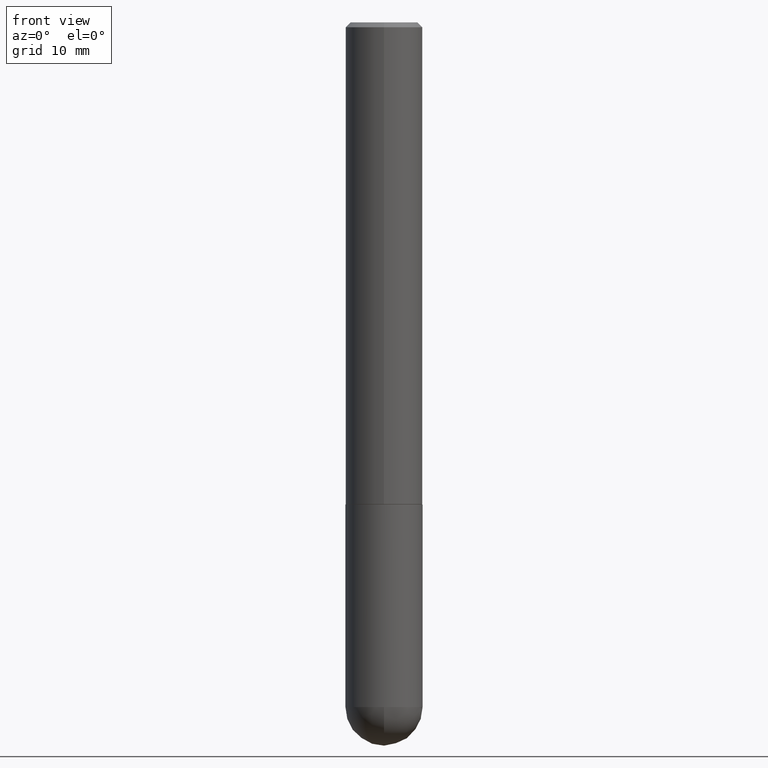
[diagram: clean part render]
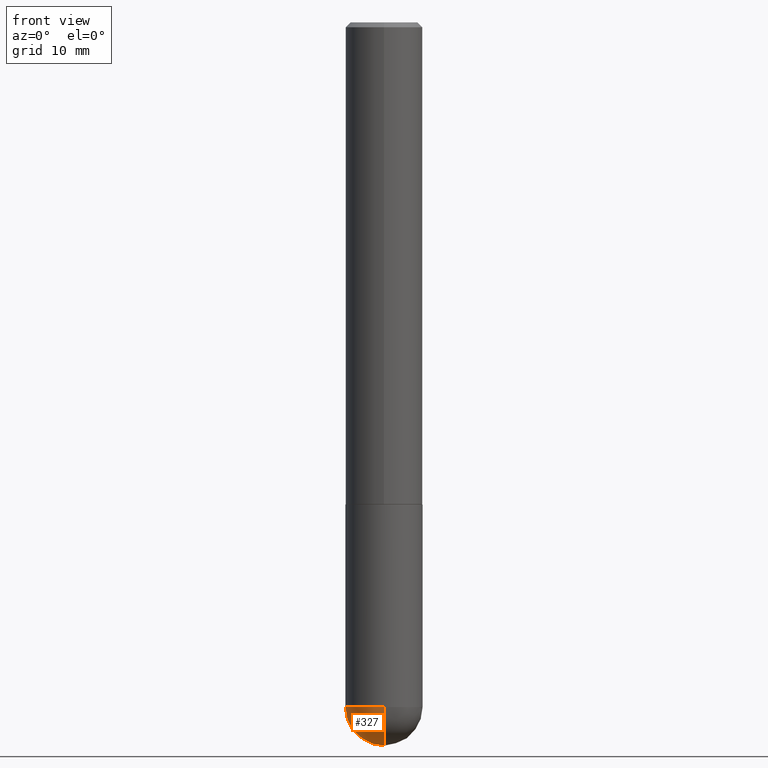
[diagram: same view with one face highlighted and labeled with its STEP entity id]
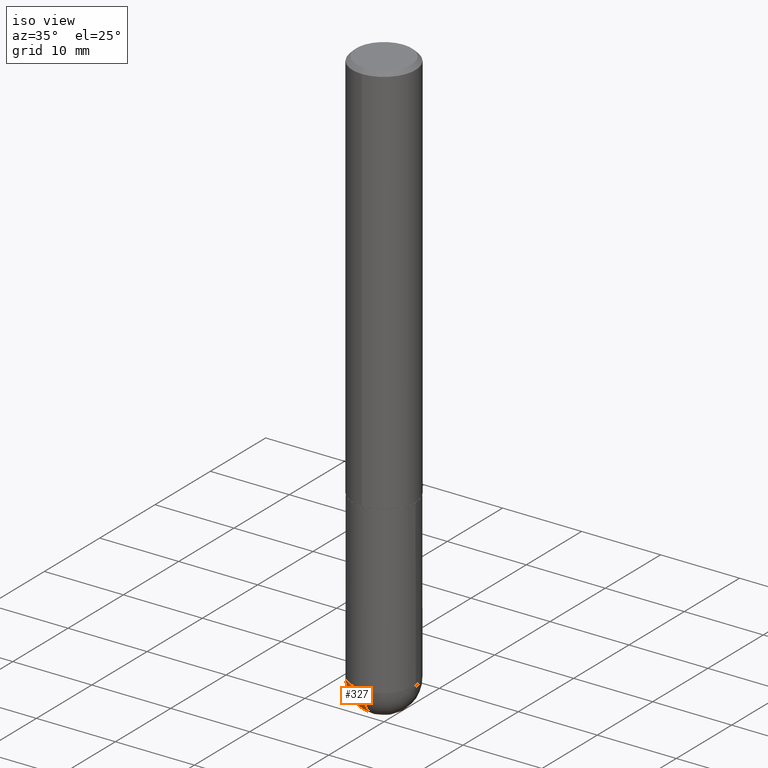
[diagram: same view with one face highlighted and labeled with its STEP entity id]
A machine part, front view. The second image highlights one B-rep face of the part: STEP entity #327.
A second angle (iso view) of the same face is appended — the face is thin or edge-on in the first view.
In plain terms, the highlighted spherical surface has radius 4.0005 mm.
Its self-contained STEP definition (entity closure, byte-faithful):
#5 = CARTESIAN_POINT ( 'NONE',  ( 6.896594947516873652E-29, -1.077418437193280573E-14, -2.952799999999999869 ) ) ;
#8 = EDGE_CURVE ( 'NONE', #360, #367, #322, .T. ) ;
#11 = DIRECTION ( 'NONE',  ( 1.000000000000000000, -6.982962677686265922E-15, 4.883557194083112340E-29 ) ) ;
#24 = DIRECTION ( 'NONE',  ( -7.105427357601000281E-15, -1.000000000000000000, 0.000000000000000000 ) ) ;
#36 = ORIENTED_EDGE ( 'NONE', *, *, #154, .F. ) ;
#44 = AXIS2_PLACEMENT_3D ( 'NONE', #132, #263, #241 ) ;
#50 = DIRECTION ( 'NONE',  ( -1.000000000000000000, 6.982962677686265922E-15, -4.883557194083112901E-29 ) ) ;
#51 = DIRECTION ( 'NONE',  ( -1.000000000000000000, 7.105427357601001070E-15, -4.926315508542082329E-29 ) ) ;
#72 = EDGE_LOOP ( 'NONE', ( #391, #204, #92, #36 ) ) ;
#83 = CARTESIAN_POINT ( 'NONE',  ( 6.504699176015425459E-29, -1.023392015460829390E-14, -2.795299999999999674 ) ) ;
#92 = ORIENTED_EDGE ( 'NONE', *, *, #290, .F. ) ;
#128 = VERTEX_POINT ( 'NONE', #205 ) ;
#132 = CARTESIAN_POINT ( 'NONE',  ( 6.835818953929311707E-29, -9.759737786468243605E-15, -2.795299999999999674 ) ) ;
#136 = CIRCLE ( 'NONE', #44, 0.1575000000000000011 ) ;
#144 = DIRECTION ( 'NONE',  ( -2.445468806185136597E-29, 3.491481338843145583E-15, 1.000000000000000000 ) ) ;
#152 = AXIS2_PLACEMENT_3D ( 'NONE', #295, #11, #311 ) ;
#154 = EDGE_CURVE ( 'NONE', #128, #289, #136, .T. ) ;
#186 = DIRECTION ( 'NONE',  ( 1.000000000000000000, -6.982962677686261977E-15, 0.000000000000000000 ) ) ;
#192 = CARTESIAN_POINT ( 'NONE',  ( -1.119104808822091931E-15, -0.1575000000000101319, -2.795299999999998786 ) ) ;
#199 = EDGE_CURVE ( 'NONE', #360, #128, #366, .T. ) ;
#204 = ORIENTED_EDGE ( 'NONE', *, *, #8, .T. ) ;
#205 = CARTESIAN_POINT ( 'NONE',  ( 1.099816621735654731E-15, 0.1574999999999901201, -2.795300000000000118 ) ) ;
#208 = AXIS2_PLACEMENT_3D ( 'NONE', #380, #144, #186 ) ;
#216 = CARTESIAN_POINT ( 'NONE',  ( -0.1575000000000000011, -7.197254592168330052E-15, -2.795299999999999674 ) ) ;
#241 = DIRECTION ( 'NONE',  ( 1.000000000000000000, -6.982962677686261977E-15, 0.000000000000000000 ) ) ;
#249 = SPHERICAL_SURFACE ( 'NONE', #314, 0.1575000000000003064 ) ;
#263 = DIRECTION ( 'NONE',  ( -2.445468806185136597E-29, 3.491481338843145583E-15, 1.000000000000000000 ) ) ;
#271 = CARTESIAN_POINT ( 'NONE',  ( 6.504699176015425459E-29, -1.023392015460829390E-14, -2.795299999999999674 ) ) ;
#289 = VERTEX_POINT ( 'NONE', #216 ) ;
#290 = EDGE_CURVE ( 'NONE', #289, #367, #389, .T. ) ;
#295 = CARTESIAN_POINT ( 'NONE',  ( 6.504699176015425459E-29, -1.023392015460829390E-14, -2.795299999999999674 ) ) ;
#311 = DIRECTION ( 'NONE',  ( 6.982962677686265133E-15, 1.000000000000000000, 0.000000000000000000 ) ) ;
#314 = AXIS2_PLACEMENT_3D ( 'NONE', #83, #50, #375 ) ;
#322 = CIRCLE ( 'NONE', #408, 0.1575000000000003064 ) ;
#327 = ADVANCED_FACE ( 'NONE', ( #373 ), #249, .T. ) ;
#360 = VERTEX_POINT ( 'NONE', #5 ) ;
#366 = CIRCLE ( 'NONE', #152, 0.1575000000000003064 ) ;
#367 = VERTEX_POINT ( 'NONE', #192 ) ;
#373 = FACE_OUTER_BOUND ( 'NONE', #72, .T. ) ;
#375 = DIRECTION ( 'NONE',  ( 6.982962677686265922E-15, 1.000000000000000000, -3.469013325287946588E-15 ) ) ;
#380 = CARTESIAN_POINT ( 'NONE',  ( 6.835818953929311707E-29, -9.759737786468243605E-15, -2.795299999999999674 ) ) ;
#389 = CIRCLE ( 'NONE', #208, 0.1575000000000000011 ) ;
#391 = ORIENTED_EDGE ( 'NONE', *, *, #199, .F. ) ;
#408 = AXIS2_PLACEMENT_3D ( 'NONE', #271, #51, #24 ) ;